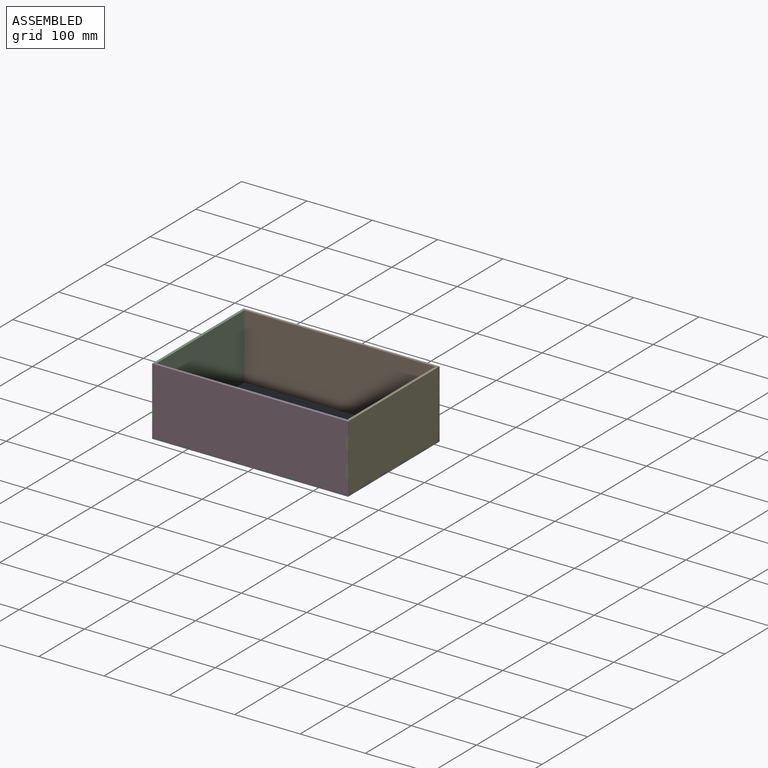
[diagram: assembled view]
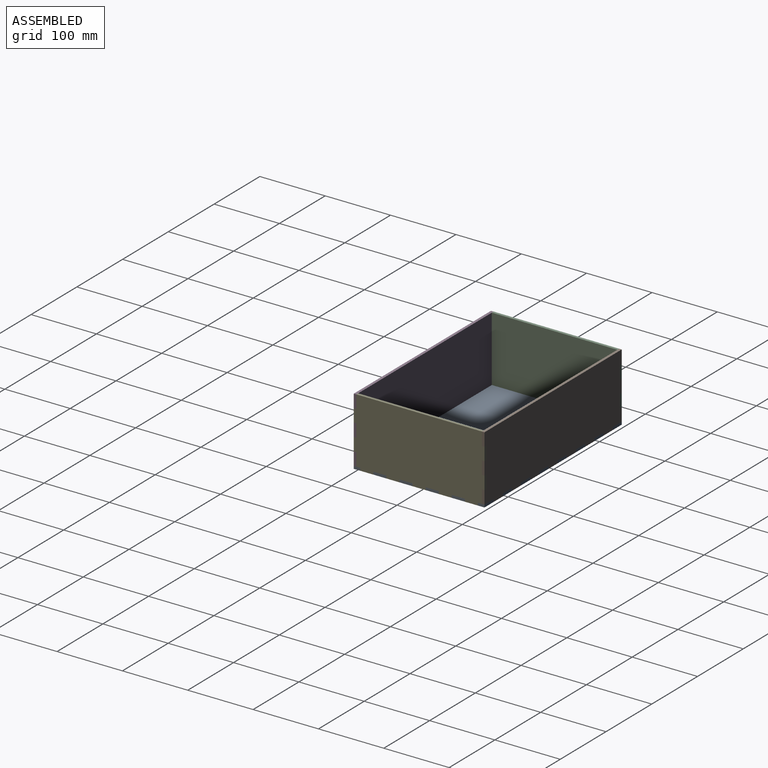
[diagram: assembled view, second angle]
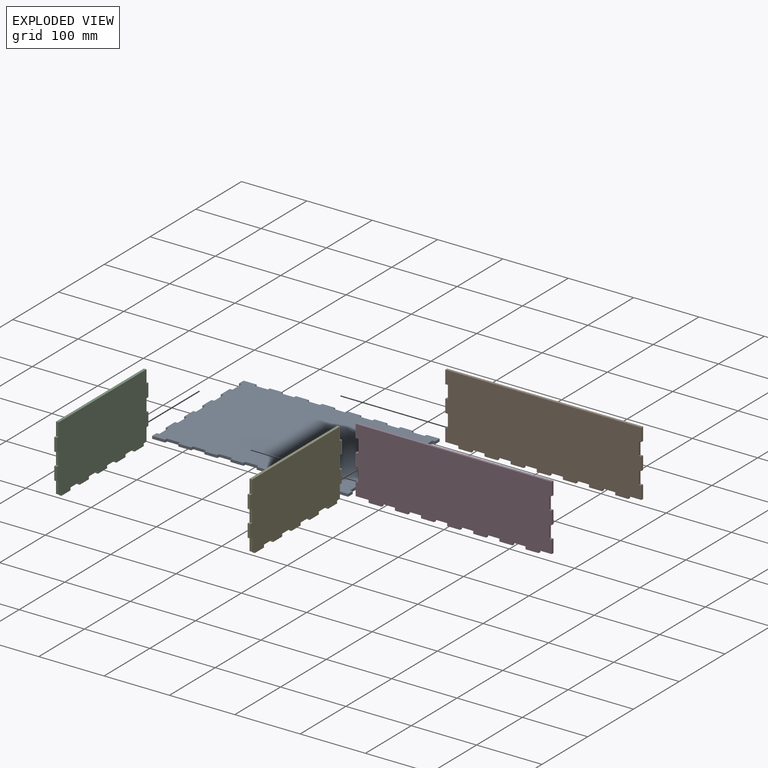
[diagram: exploded view]
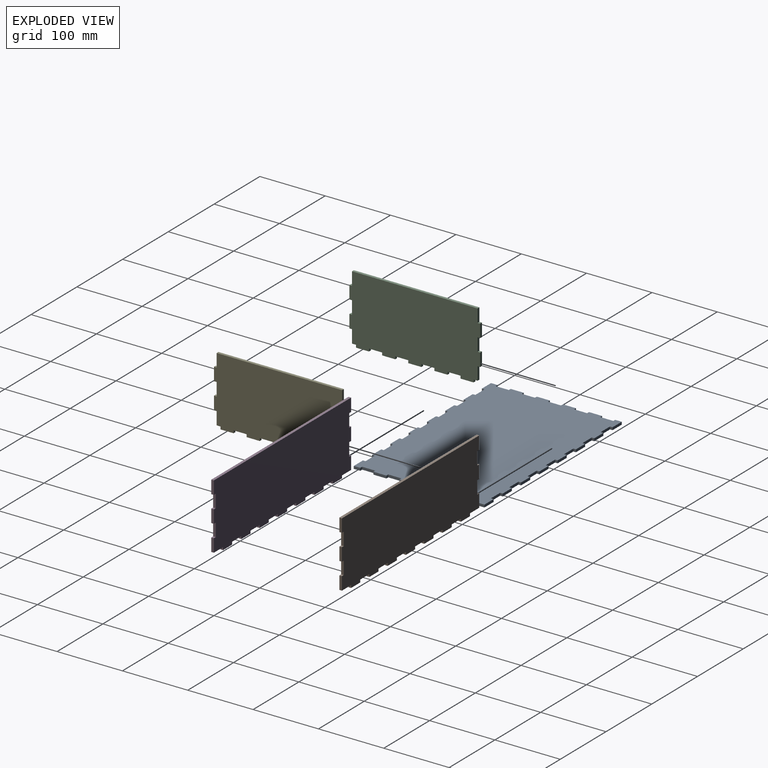
[diagram: exploded view, second angle]
ASSEMBLY  parts=5 mates=4
PART A: 102 faces, bbox 300x200x4 mm
  f0: plane 20x4mm, normal (-1,0,0), area 80mm2, adj f1,f99,f100,f101
  f1: plane 4x4mm, normal (0,1,0), area 16mm2, adj f0,f2,f100,f101
  f2: plane 20x4mm, normal (-1,0,0), area 80mm2, adj f1,f3,f100,f101
  f3: plane 4x4mm, normal (0,-1,0), area 16mm2, adj f2,f4,f100,f101
  f4: plane 20x4mm, normal (-1,0,0), area 80mm2, adj f3,f5,f100,f101
  f5: plane 4x4mm, normal (0,1,0), area 16mm2, adj f4,f6,f100,f101
  f6: plane 20x4mm, normal (-1,0,0), area 80mm2, adj f5,f7,f100,f101
  f7: plane 4x4mm, normal (0,-1,0), area 16mm2, adj f6,f8,f100,f101
  f8: plane 20x4mm, normal (-1,0,0), area 80mm2, adj f7,f9,f100,f101
  f9: plane 4x4mm, normal (0,1,0), area 16mm2, adj f8,f10,f100,f101
  f10: plane 10x4mm, normal (-1,0,0), area 40mm2, adj f9,f11,f100,f101
  f11: plane 20x4mm, normal (0,-1,0), area 80mm2, adj f10,f12,f100,f101
  f12: plane 4x4mm, normal (1,0,0), area 16mm2, adj f11,f13,f100,f101
  f13: plane 20x4mm, normal (0,-1,0), area 80mm2, adj f12,f14,f100,f101
  f14: plane 4x4mm, normal (-1,0,0), area 16mm2, adj f13,f15,f100,f101
  f15: plane 20x4mm, normal (0,-1,0), area 80mm2, adj f14,f16,f100,f101
  f16: plane 4x4mm, normal (1,0,0), area 16mm2, adj f15,f17,f100,f101
  f17: plane 20x4mm, normal (0,-1,0), area 80mm2, adj f16,f18,f100,f101
  f18: plane 4x4mm, normal (-1,0,0), area 16mm2, adj f17,f19,f100,f101
  f19: plane 20x4mm, normal (0,-1,0), area 80mm2, adj f18,f20,f100,f101
  f20: plane 4x4mm, normal (1,0,0), area 16mm2, adj f19,f21,f100,f101
  f21: plane 20x4mm, normal (0,-1,0), area 80mm2, adj f20,f22,f100,f101
  f22: plane 4x4mm, normal (-1,0,0), area 16mm2, adj f21,f23,f100,f101
  f23: plane 20x4mm, normal (0,-1,0), area 80mm2, adj f22,f24,f100,f101
  f24: plane 4x4mm, normal (1,0,0), area 16mm2, adj f23,f25,f100,f101
  f25: plane 20x4mm, normal (0,-1,0), area 80mm2, adj f24,f26,f100,f101
  f26: plane 4x4mm, normal (-1,0,0), area 16mm2, adj f25,f27,f100,f101
  f27: plane 20x4mm, normal (0,-1,0), area 80mm2, adj f26,f28,f100,f101
  f28: plane 4x4mm, normal (1,0,0), area 16mm2, adj f27,f29,f100,f101
  f29: plane 20x4mm, normal (0,-1,0), area 80mm2, adj f28,f30,f100,f101
  f30: plane 4x4mm, normal (-1,0,0), area 16mm2, adj f29,f31,f100,f101
  f31: plane 20x4mm, normal (0,-1,0), area 80mm2, adj f30,f32,f100,f101
  f32: plane 4x4mm, normal (1,0,0), area 16mm2, adj f31,f33,f100,f101
  f33: plane 20x4mm, normal (0,-1,0), area 80mm2, adj f32,f34,f100,f101
  f34: plane 4x4mm, normal (-1,0,0), area 16mm2, adj f33,f35,f100,f101
  f35: plane 20x4mm, normal (0,-1,0), area 80mm2, adj f34,f36,f100,f101
  f36: plane 4x4mm, normal (1,0,0), area 16mm2, adj f35,f37,f100,f101
  f37: plane 20x4mm, normal (0,-1,0), area 80mm2, adj f36,f38,f100,f101
  f38: plane 4x4mm, normal (-1,0,0), area 16mm2, adj f37,f39,f100,f101
  f39: plane 20x4mm, normal (0,-1,0), area 80mm2, adj f38,f40,f100,f101
  f40: plane 10x4mm, normal (1,0,0), area 40mm2, adj f39,f41,f100,f101
  f41: plane 4x4mm, normal (0,1,0), area 16mm2, adj f40,f42,f100,f101
  f42: plane 20x4mm, normal (1,0,0), area 80mm2, adj f41,f43,f100,f101
  f43: plane 4x4mm, normal (0,-1,0), area 16mm2, adj f42,f44,f100,f101
  f44: plane 20x4mm, normal (1,0,0), area 80mm2, adj f43,f45,f100,f101
  f45: plane 4x4mm, normal (0,1,0), area 16mm2, adj f44,f46,f100,f101
  f46: plane 20x4mm, normal (1,0,0), area 80mm2, adj f45,f47,f100,f101
  f47: plane 4x4mm, normal (0,-1,0), area 16mm2, adj f46,f48,f100,f101
  f48: plane 20x4mm, normal (1,0,0), area 80mm2, adj f47,f49,f100,f101
  f49: plane 4x4mm, normal (0,1,0), area 16mm2, adj f48,f50,f100,f101
  f50: plane 20x4mm, normal (1,0,0), area 80mm2, adj f49,f51,f100,f101
  f51: plane 4x4mm, normal (0,-1,0), area 16mm2, adj f50,f52,f100,f101
  f52: plane 20x4mm, normal (1,0,0), area 80mm2, adj f51,f53,f100,f101
  f53: plane 4x4mm, normal (0,1,0), area 16mm2, adj f52,f54,f100,f101
  f54: plane 20x4mm, normal (1,0,0), area 80mm2, adj f53,f55,f100,f101
  f55: plane 4x4mm, normal (0,-1,0), area 16mm2, adj f54,f56,f100,f101
  f56: plane 20x4mm, normal (1,0,0), area 80mm2, adj f55,f57,f100,f101
  f57: plane 4x4mm, normal (0,1,0), area 16mm2, adj f56,f58,f100,f101
  f58: plane 20x4mm, normal (1,0,0), area 80mm2, adj f57,f59,f100,f101
  f59: plane 4x4mm, normal (0,-1,0), area 16mm2, adj f58,f60,f100,f101
  f60: plane 10x4mm, normal (1,0,0), area 40mm2, adj f59,f61,f100,f101
  f61: plane 20x4mm, normal (0,1,0), area 80mm2, adj f60,f62,f100,f101
  f62: plane 4x4mm, normal (-1,0,0), area 16mm2, adj f61,f63,f100,f101
  f63: plane 20x4mm, normal (0,1,0), area 80mm2, adj f62,f64,f100,f101
  f64: plane 4x4mm, normal (1,0,0), area 16mm2, adj f63,f65,f100,f101
  f65: plane 20x4mm, normal (0,1,0), area 80mm2, adj f64,f66,f100,f101
  f66: plane 4x4mm, normal (-1,0,0), area 16mm2, adj f65,f67,f100,f101
  f67: plane 20x4mm, normal (0,1,0), area 80mm2, adj f66,f68,f100,f101
  f68: plane 4x4mm, normal (1,0,0), area 16mm2, adj f67,f69,f100,f101
  f69: plane 20x4mm, normal (0,1,0), area 80mm2, adj f68,f70,f100,f101
  f70: plane 4x4mm, normal (-1,0,0), area 16mm2, adj f69,f71,f100,f101
  f71: plane 20x4mm, normal (0,1,0), area 80mm2, adj f70,f72,f100,f101
  f72: plane 4x4mm, normal (1,0,0), area 16mm2, adj f71,f73,f100,f101
  f73: plane 20x4mm, normal (0,1,0), area 80mm2, adj f72,f74,f100,f101
  f74: plane 4x4mm, normal (-1,0,0), area 16mm2, adj f73,f75,f100,f101
  f75: plane 20x4mm, normal (0,1,0), area 80mm2, adj f74,f76,f100,f101
  f76: plane 4x4mm, normal (1,0,0), area 16mm2, adj f75,f77,f100,f101
  f77: plane 20x4mm, normal (0,1,0), area 80mm2, adj f76,f78,f100,f101
  f78: plane 4x4mm, normal (-1,0,0), area 16mm2, adj f77,f79,f100,f101
  f79: plane 20x4mm, normal (0,1,0), area 80mm2, adj f78,f80,f100,f101
  f80: plane 4x4mm, normal (1,0,0), area 16mm2, adj f79,f81,f100,f101
  f81: plane 20x4mm, normal (0,1,0), area 80mm2, adj f80,f82,f100,f101
  f82: plane 4x4mm, normal (-1,0,0), area 16mm2, adj f81,f83,f100,f101
  f83: plane 20x4mm, normal (0,1,0), area 80mm2, adj f82,f84,f100,f101
  f84: plane 4x4mm, normal (1,0,0), area 16mm2, adj f83,f85,f100,f101
  f85: plane 20x4mm, normal (0,1,0), area 80mm2, adj f84,f86,f100,f101
  f86: plane 4x4mm, normal (-1,0,0), area 16mm2, adj f85,f87,f100,f101
  f87: plane 20x4mm, normal (0,1,0), area 80mm2, adj f86,f88,f100,f101
  f88: plane 4x4mm, normal (1,0,0), area 16mm2, adj f87,f89,f100,f101
  f89: plane 20x4mm, normal (0,1,0), area 80mm2, adj f88,f90,f100,f101
  f90: plane 10x4mm, normal (-1,0,0), area 40mm2, adj f89,f91,f100,f101
  f91: plane 4x4mm, normal (0,-1,0), area 16mm2, adj f90,f92,f100,f101
  f92: plane 20x4mm, normal (-1,0,0), area 80mm2, adj f91,f93,f100,f101
  f93: plane 4x4mm, normal (0,1,0), area 16mm2, adj f92,f94,f100,f101
  f94: plane 20x4mm, normal (-1,0,0), area 80mm2, adj f93,f95,f100,f101
  f95: plane 4x4mm, normal (0,-1,0), area 16mm2, adj f94,f96,f100,f101
  f96: plane 20x4mm, normal (-1,0,0), area 80mm2, adj f95,f97,f100,f101
  f97: plane 4x4mm, normal (0,1,0), area 16mm2, adj f96,f98,f100,f101
  f98: plane 20x4mm, normal (-1,0,0), area 80mm2, adj f97,f99,f100,f101
  f99: plane 4x4mm, normal (0,-1,0), area 16mm2, adj f0,f98,f100,f101
  f100: plane 300x200mm, normal (0,0,1), area 58080mm2, adj f0,f1,f2,f3,f4,f5,f6,f7
  f101: plane 300x200mm, normal (0,0,-1), area 58080mm2, adj f0,f1,f2,f3,f4,f5,f6,f7
PART B: 50 faces, bbox 300x4x104 mm
  f0: plane 20x4mm, normal (-1,0,0), area 80mm2, adj f4,f5,f15,f46
  f1: plane 20x4mm, normal (-1,0,0), area 80mm2, adj f4,f5,f41,f45
  f2: plane 20x4mm, normal (1,0,0), area 80mm2, adj f4,f5,f38,f47
  f3: plane 20x4mm, normal (1,0,0), area 80mm2, adj f4,f5,f15,f40
  f4: plane 300x104mm, normal (0,1,0), area 30240mm2, adj f0,f1,f2,f3,f6,f7,f8,f9
  f5: plane 300x104mm, normal (0,-1,0), area 30240mm2, adj f0,f1,f2,f3,f6,f7,f8,f9
  f6: plane 20x4mm, normal (0,0,-1), area 80mm2, adj f4,f5,f34,f36
  f7: plane 20x4mm, normal (0,0,-1), area 80mm2, adj f4,f5,f31,f33
  f8: plane 20x4mm, normal (0,0,-1), area 80mm2, adj f4,f5,f28,f30
  f9: plane 20x4mm, normal (0,0,-1), area 80mm2, adj f4,f5,f25,f27
  f10: plane 20x4mm, normal (0,0,-1), area 80mm2, adj f4,f5,f22,f24
  f11: plane 20x4mm, normal (0,0,-1), area 80mm2, adj f4,f5,f19,f21
  f12: plane 20x4mm, normal (0,0,-1), area 80mm2, adj f4,f5,f13,f18
  f13: plane 20x4mm, normal (-1,0,0), area 80mm2, adj f4,f5,f12,f43
  f14: plane 20x4mm, normal (1,0,0), area 80mm2, adj f4,f5,f16,f48
  f15: plane 300x4mm, normal (0,0,1), area 1200mm2, adj f0,f3,f4,f5
  f16: plane 20x4mm, normal (0,0,-1), area 80mm2, adj f4,f5,f14,f37
  f17: plane 20x4mm, normal (0,0,-1), area 80mm2, adj f4,f5,f18,f19
  f18: plane 4x4mm, normal (-1,0,0), area 16mm2, adj f4,f5,f12,f17
  f19: plane 4x4mm, normal (1,0,0), area 16mm2, adj f4,f5,f11,f17
  f20: plane 20x4mm, normal (0,0,-1), area 80mm2, adj f4,f5,f21,f22
  f21: plane 4x4mm, normal (-1,0,0), area 16mm2, adj f4,f5,f11,f20
  f22: plane 4x4mm, normal (1,0,0), area 16mm2, adj f4,f5,f10,f20
  f23: plane 20x4mm, normal (0,0,-1), area 80mm2, adj f4,f5,f24,f25
  f24: plane 4x4mm, normal (-1,0,0), area 16mm2, adj f4,f5,f10,f23
  f25: plane 4x4mm, normal (1,0,0), area 16mm2, adj f4,f5,f9,f23
  f26: plane 20x4mm, normal (0,0,-1), area 80mm2, adj f4,f5,f27,f28
  f27: plane 4x4mm, normal (-1,0,0), area 16mm2, adj f4,f5,f9,f26
  f28: plane 4x4mm, normal (1,0,0), area 16mm2, adj f4,f5,f8,f26
  f29: plane 20x4mm, normal (0,0,-1), area 80mm2, adj f4,f5,f30,f31
  f30: plane 4x4mm, normal (-1,0,0), area 16mm2, adj f4,f5,f8,f29
  f31: plane 4x4mm, normal (1,0,0), area 16mm2, adj f4,f5,f7,f29
  f32: plane 20x4mm, normal (0,0,-1), area 80mm2, adj f4,f5,f33,f34
  f33: plane 4x4mm, normal (-1,0,0), area 16mm2, adj f4,f5,f7,f32
  f34: plane 4x4mm, normal (1,0,0), area 16mm2, adj f4,f5,f6,f32
  f35: plane 20x4mm, normal (0,0,-1), area 80mm2, adj f4,f5,f36,f37
  f36: plane 4x4mm, normal (-1,0,0), area 16mm2, adj f4,f5,f6,f35
  f37: plane 4x4mm, normal (1,0,0), area 16mm2, adj f4,f5,f16,f35
  f38: plane 4x4mm, normal (0,0,1), area 16mm2, adj f2,f4,f5,f39
  f39: plane 20x4mm, normal (1,0,0), area 80mm2, adj f4,f5,f38,f40
  f40: plane 4x4mm, normal (0,0,-1), area 16mm2, adj f3,f4,f5,f39
  f41: plane 4x4mm, normal (0,0,-1), area 16mm2, adj f1,f4,f5,f42
  f42: plane 20x4mm, normal (-1,0,0), area 80mm2, adj f4,f5,f41,f43
  f43: plane 4x4mm, normal (0,0,1), area 16mm2, adj f4,f5,f13,f42
  f44: plane 20x4mm, normal (-1,0,0), area 80mm2, adj f4,f5,f45,f46
  f45: plane 4x4mm, normal (0,0,1), area 16mm2, adj f1,f4,f5,f44
  f46: plane 4x4mm, normal (0,0,-1), area 16mm2, adj f0,f4,f5,f44
  f47: plane 4x4mm, normal (0,0,-1), area 16mm2, adj f2,f4,f5,f49
  f48: plane 4x4mm, normal (0,0,1), area 16mm2, adj f4,f5,f14,f49
  f49: plane 20x4mm, normal (1,0,0), area 80mm2, adj f4,f5,f47,f48
PART C: 42 faces, bbox 4x200x104 mm
  f0: plane 20x4mm, normal (0,1,0), area 80mm2, adj f6,f7,f32,f35
  f1: plane 20x4mm, normal (0,1,0), area 80mm2, adj f6,f7,f31,f39
  f2: plane 20x4mm, normal (0,-1,0), area 80mm2, adj f6,f7,f30,f41
  f3: plane 20x4mm, normal (0,-1,0), area 80mm2, adj f6,f7,f28,f37
  f4: plane 192x4mm, normal (0,0,1), area 768mm2, adj f6,f7,f36,f38
  f5: plane 6x4mm, normal (0,0,-1), area 24mm2, adj f6,f7,f14,f34
  f6: plane 200x104mm, normal (1,0,0), area 19920mm2, adj f0,f1,f2,f3,f4,f5,f8,f9
  f7: plane 200x104mm, normal (-1,0,0), area 19920mm2, adj f0,f1,f2,f3,f4,f5,f8,f9
  f8: plane 6x4mm, normal (0,0,-1), area 24mm2, adj f6,f7,f27,f40
  f9: plane 20x4mm, normal (0,0,-1), area 80mm2, adj f6,f7,f24,f26
  f10: plane 20x4mm, normal (0,0,-1), area 80mm2, adj f6,f7,f21,f23
  f11: plane 20x4mm, normal (0,0,-1), area 80mm2, adj f6,f7,f18,f20
  f12: plane 20x4mm, normal (0,0,-1), area 80mm2, adj f6,f7,f15,f17
  f13: plane 20x4mm, normal (0,0,-1), area 80mm2, adj f6,f7,f14,f15
  f14: plane 4x4mm, normal (0,1,0), area 16mm2, adj f5,f6,f7,f13
  f15: plane 4x4mm, normal (0,-1,0), area 16mm2, adj f6,f7,f12,f13
  f16: plane 20x4mm, normal (0,0,-1), area 80mm2, adj f6,f7,f17,f18
  f17: plane 4x4mm, normal (0,1,0), area 16mm2, adj f6,f7,f12,f16
  f18: plane 4x4mm, normal (0,-1,0), area 16mm2, adj f6,f7,f11,f16
  f19: plane 20x4mm, normal (0,0,-1), area 80mm2, adj f6,f7,f20,f21
  f20: plane 4x4mm, normal (0,1,0), area 16mm2, adj f6,f7,f11,f19
  f21: plane 4x4mm, normal (0,-1,0), area 16mm2, adj f6,f7,f10,f19
  f22: plane 20x4mm, normal (0,0,-1), area 80mm2, adj f6,f7,f23,f24
  f23: plane 4x4mm, normal (0,1,0), area 16mm2, adj f6,f7,f10,f22
  f24: plane 4x4mm, normal (0,-1,0), area 16mm2, adj f6,f7,f9,f22
  f25: plane 20x4mm, normal (0,0,-1), area 80mm2, adj f6,f7,f26,f27
  f26: plane 4x4mm, normal (0,1,0), area 16mm2, adj f6,f7,f9,f25
  f27: plane 4x4mm, normal (0,-1,0), area 16mm2, adj f6,f7,f8,f25
  f28: plane 4x4mm, normal (0,0,-1), area 16mm2, adj f3,f6,f7,f29
  f29: plane 20x4mm, normal (0,-1,0), area 80mm2, adj f6,f7,f28,f30
  f30: plane 4x4mm, normal (0,0,1), area 16mm2, adj f2,f6,f7,f29
  f31: plane 4x4mm, normal (0,0,-1), area 16mm2, adj f1,f6,f7,f33
  f32: plane 4x4mm, normal (0,0,1), area 16mm2, adj f0,f6,f7,f33
  f33: plane 20x4mm, normal (0,1,0), area 80mm2, adj f6,f7,f31,f32
  f34: plane 20x4mm, normal (0,1,0), area 80mm2, adj f5,f6,f7,f35
  f35: plane 4x4mm, normal (0,0,-1), area 16mm2, adj f0,f6,f7,f34
  f36: plane 20x4mm, normal (0,-1,0), area 80mm2, adj f4,f6,f7,f37
  f37: plane 4x4mm, normal (0,0,1), area 16mm2, adj f3,f6,f7,f36
  f38: plane 20x4mm, normal (0,1,0), area 80mm2, adj f4,f6,f7,f39
  f39: plane 4x4mm, normal (0,0,1), area 16mm2, adj f1,f6,f7,f38
  f40: plane 20x4mm, normal (0,-1,0), area 80mm2, adj f6,f7,f8,f41
  f41: plane 4x4mm, normal (0,0,-1), area 16mm2, adj f2,f6,f7,f40
PART D: same geometry as B
PART E: same geometry as C
PLACE A t=(2.74,0.84,-3.11)mm fixed
PLACE B t=(2.74,0.84,-3.11)mm
PLACE C t=(2.74,0.84,-3.11)mm
PLACE D t=(2.74,-195.16,-3.11)mm
PLACE E t=(298.74,0.84,-3.11)mm
MATE fastened B.f37 <-> A.f62  axis (1,0,0) through (132.74,98.84,-1.11)mm
MATE fastened C.f14 <-> A.f91  axis (0,1,0) through (-145.26,90.84,-1.11)mm
MATE fastened E.f14 <-> A.f59  axis (0,1,0) through (150.74,90.84,-1.11)mm
MATE fastened D.f37 <-> A.f38  axis (1,0,0) through (132.74,-97.16,-1.11)mm
